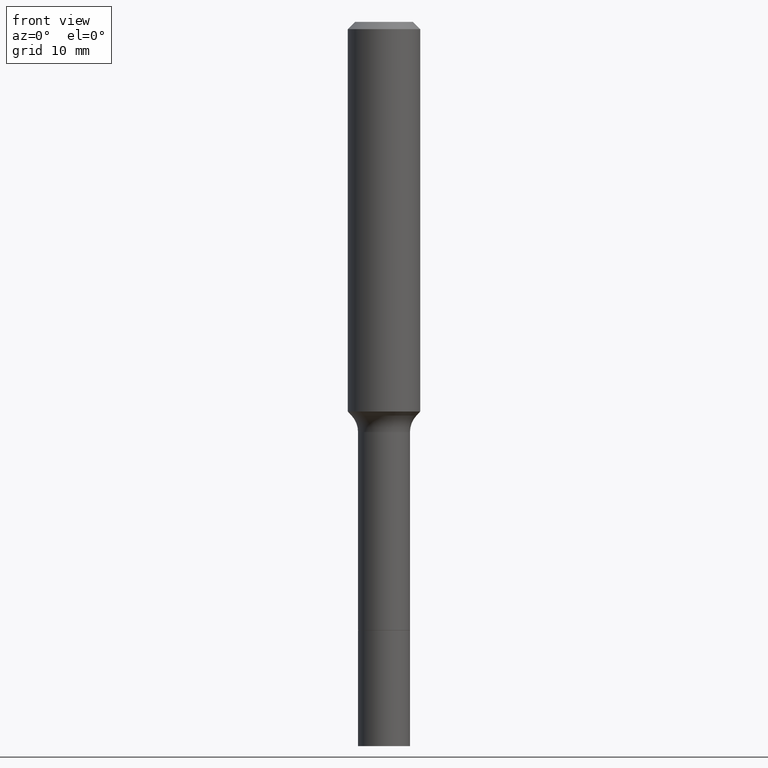
[diagram: clean part render]
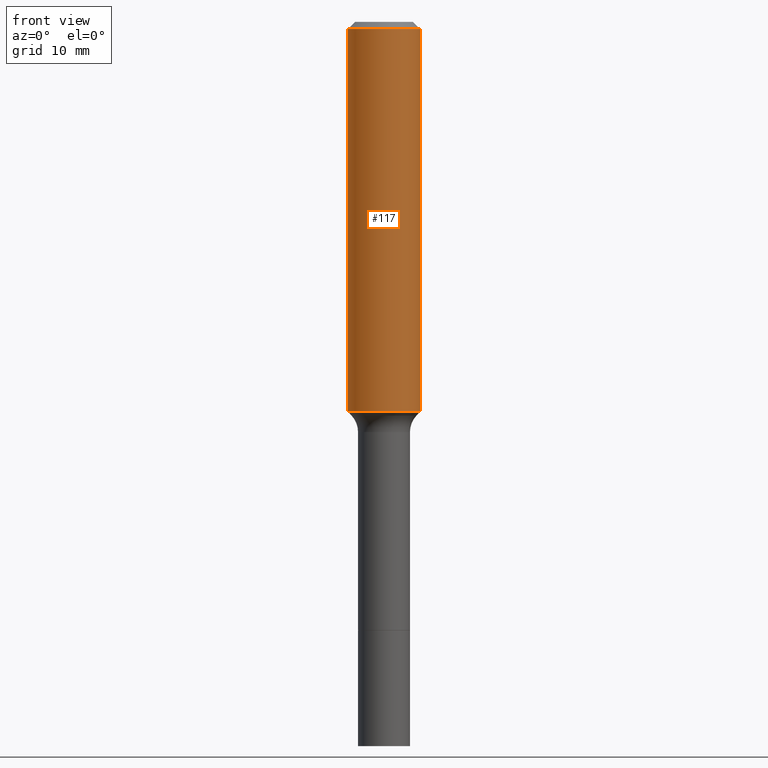
[diagram: same view with one face highlighted and labeled with its STEP entity id]
A machine part, front view. The second image highlights one B-rep face of the part: STEP entity #117.
In plain terms, the highlighted cylindrical surface (edge-blend (fillet) strip) has radius 2.9997 mm, axis along (-0, 0, 1).
Its self-contained STEP definition (entity closure, byte-faithful):
#3 = VERTEX_POINT ( 'NONE', #330 ) ;
#14 = DIRECTION ( 'NONE',  ( -2.445468806185136877E-29, 3.491481338843145188E-15, 1.000000000000000000 ) ) ;
#15 = EDGE_CURVE ( 'NONE', #497, #3, #338, .T. ) ;
#38 = CARTESIAN_POINT ( 'NONE',  ( 3.107741934530071514E-29, -4.437031845553863878E-15, -1.270816428600478609 ) ) ;
#47 = EDGE_LOOP ( 'NONE', ( #188, #247, #335, #367 ) ) ;
#51 = VERTEX_POINT ( 'NONE', #455 ) ;
#57 = EDGE_CURVE ( 'NONE', #51, #447, #253, .T. ) ;
#64 = CIRCLE ( 'NONE', #206, 0.1181000000000001493 ) ;
#104 = CIRCLE ( 'NONE', #354, 0.1180999999999999966 ) ;
#106 = DIRECTION ( 'NONE',  ( 1.000000000000000000, -6.982962677686264344E-15, 0.000000000000000000 ) ) ;
#117 = ADVANCED_FACE ( 'NONE', ( #511 ), #143, .T. ) ;
#135 = DIRECTION ( 'NONE',  ( -2.445468806185136597E-29, 3.491481338843145583E-15, 1.000000000000000000 ) ) ;
#143 = CYLINDRICAL_SURFACE ( 'NONE', #416, 0.1181000000000000660 ) ;
#170 = CARTESIAN_POINT ( 'NONE',  ( 0.1181000000000000660, -8.246878922347485584E-16, 5.758764772215003944E-30 ) ) ;
#188 = ORIENTED_EDGE ( 'NONE', *, *, #15, .F. ) ;
#206 = AXIS2_PLACEMENT_3D ( 'NONE', #38, #317, #106 ) ;
#218 = CARTESIAN_POINT ( 'NONE',  ( 0.1180999999999999966, -9.071566814582237199E-16, -0.02362000000000014435 ) ) ;
#220 = DIRECTION ( 'NONE',  ( -2.445468806185136877E-29, 3.491481338843145188E-15, 1.000000000000000000 ) ) ;
#247 = ORIENTED_EDGE ( 'NONE', *, *, #399, .T. ) ;
#253 = LINE ( 'NONE', #170, #378 ) ;
#290 = VECTOR ( 'NONE', #220, 39.37007874015748143 ) ;
#317 = DIRECTION ( 'NONE',  ( -2.445468806185136597E-29, 3.491481338843145583E-15, 1.000000000000000000 ) ) ;
#330 = CARTESIAN_POINT ( 'NONE',  ( -0.1180999999999999966, -1.420599346455990485E-15, -0.02362000000000014435 ) ) ;
#335 = ORIENTED_EDGE ( 'NONE', *, *, #57, .T. ) ;
#338 = LINE ( 'NONE', #411, #290 ) ;
#354 = AXIS2_PLACEMENT_3D ( 'NONE', #463, #135, #488 ) ;
#367 = ORIENTED_EDGE ( 'NONE', *, *, #445, .F. ) ;
#378 = VECTOR ( 'NONE', #14, 39.37007874015748143 ) ;
#388 = CARTESIAN_POINT ( 'NONE',  ( 0.000000000000000000, 0.000000000000000000, 0.000000000000000000 ) ) ;
#399 = EDGE_CURVE ( 'NONE', #497, #51, #64, .T. ) ;
#411 = CARTESIAN_POINT ( 'NONE',  ( -0.1181000000000000660, 8.391509709326787887E-16, -5.809262341591047287E-30 ) ) ;
#416 = AXIS2_PLACEMENT_3D ( 'NONE', #388, #507, #434 ) ;
#434 = DIRECTION ( 'NONE',  ( 1.000000000000000000, -6.982962677686266711E-15, 4.876176775795936353E-29 ) ) ;
#445 = EDGE_CURVE ( 'NONE', #3, #447, #104, .T. ) ;
#447 = VERTEX_POINT ( 'NONE', #218 ) ;
#455 = CARTESIAN_POINT ( 'NONE',  ( 0.1181000000000001493, -5.261719737788613718E-15, -1.270816428600478609 ) ) ;
#463 = CARTESIAN_POINT ( 'NONE',  ( 5.776197320209328408E-31, -8.246878922347560526E-17, -0.02362000000000014435 ) ) ;
#488 = DIRECTION ( 'NONE',  ( 1.000000000000000000, -6.982962677686266711E-15, 0.000000000000000000 ) ) ;
#497 = VERTEX_POINT ( 'NONE', #510 ) ;
#507 = DIRECTION ( 'NONE',  ( -2.445468806185136597E-29, 3.491481338843145583E-15, 1.000000000000000000 ) ) ;
#510 = CARTESIAN_POINT ( 'NONE',  ( -0.1181000000000001493, -3.597880874621184103E-15, -1.270816428600478609 ) ) ;
#511 = FACE_OUTER_BOUND ( 'NONE', #47, .T. ) ;